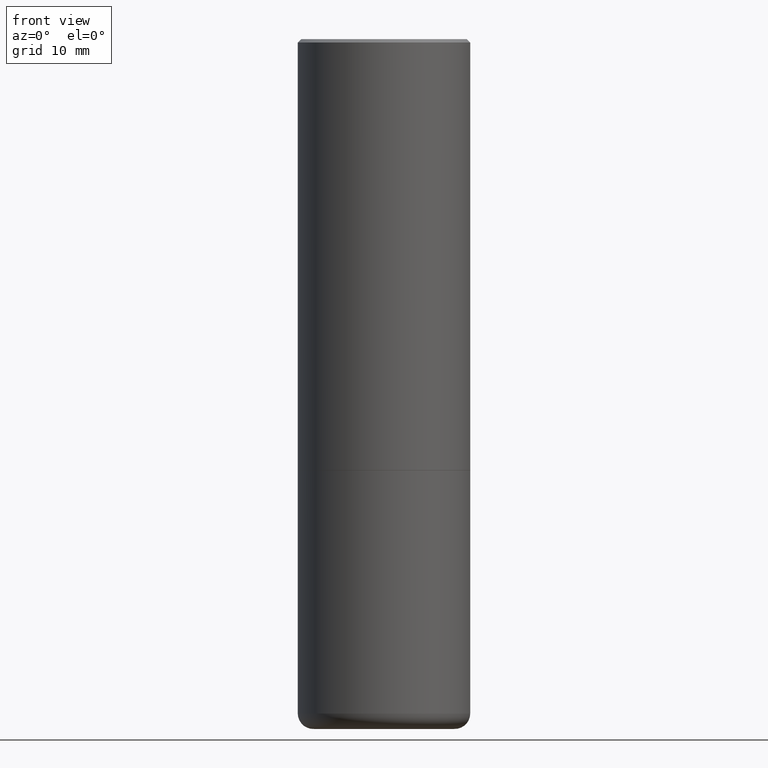
[diagram: clean part render]
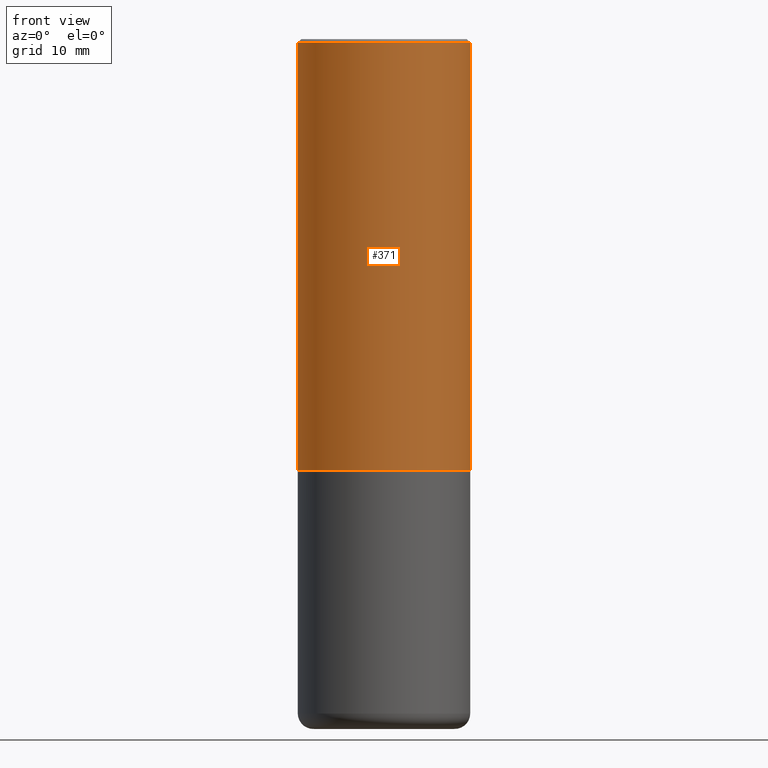
[diagram: same view with one face highlighted and labeled with its STEP entity id]
A machine part, front view. The second image highlights one B-rep face of the part: STEP entity #371.
In plain terms, the highlighted cylindrical surface (partial cylindrical patch) has radius 12.7 mm, axis along (-0, 0, 1).
Its self-contained STEP definition (entity closure, byte-faithful):
#19 = DIRECTION ( 'NONE',  ( 1.000000000000000000, -6.982962677686265133E-15, 0.000000000000000000 ) ) ;
#20 = DIRECTION ( 'NONE',  ( -2.445468806185136597E-29, 3.491481338843145583E-15, 1.000000000000000000 ) ) ;
#24 = CARTESIAN_POINT ( 'NONE',  ( -0.4999999999999998335, 3.552713678800499746E-15, -2.459467545127452330E-29 ) ) ;
#27 = CARTESIAN_POINT ( 'NONE',  ( 4.890937612370278413E-31, -6.982962677686297772E-17, -0.02000000000000002123 ) ) ;
#42 = EDGE_LOOP ( 'NONE', ( #69, #373, #128, #439 ) ) ;
#63 = DIRECTION ( 'NONE',  ( -2.445468806185136877E-29, 3.491481338843145188E-15, 1.000000000000000000 ) ) ;
#69 = ORIENTED_EDGE ( 'NONE', *, *, #293, .F. ) ;
#83 = CARTESIAN_POINT ( 'NONE',  ( 0.4999999999999996669, -3.500078625662626318E-15, -0.02000000000000002123 ) ) ;
#89 = CYLINDRICAL_SURFACE ( 'NONE', #306, 0.4999999999999998335 ) ;
#92 = CARTESIAN_POINT ( 'NONE',  ( 0.4999999999999998335, -3.491481338843132566E-15, 2.438088387897967336E-29 ) ) ;
#104 = VERTEX_POINT ( 'NONE', #256 ) ;
#114 = CARTESIAN_POINT ( 'NONE',  ( -0.5000000000000000000, -8.448070674724403070E-16, -2.499000000000000110 ) ) ;
#117 = VECTOR ( 'NONE', #63, 39.37007874015748143 ) ;
#127 = LINE ( 'NONE', #24, #117 ) ;
#128 = ORIENTED_EDGE ( 'NONE', *, *, #315, .T. ) ;
#130 = DIRECTION ( 'NONE',  ( 1.000000000000000000, -6.982962677686267499E-15, 4.876176775795936353E-29 ) ) ;
#144 = VECTOR ( 'NONE', #374, 39.37007874015748143 ) ;
#151 = CIRCLE ( 'NONE', #420, 0.5000000000000000000 ) ;
#160 = CARTESIAN_POINT ( 'NONE',  ( 0.000000000000000000, 0.000000000000000000, 0.000000000000000000 ) ) ;
#193 = VERTEX_POINT ( 'NONE', #83 ) ;
#194 = EDGE_CURVE ( 'NONE', #236, #104, #151, .T. ) ;
#236 = VERTEX_POINT ( 'NONE', #114 ) ;
#240 = DIRECTION ( 'NONE',  ( 1.000000000000000000, -6.982962677686266711E-15, 0.000000000000000000 ) ) ;
#256 = CARTESIAN_POINT ( 'NONE',  ( 0.5000000000000000000, -1.221669320461215371E-14, -2.499000000000000110 ) ) ;
#266 = DIRECTION ( 'NONE',  ( -2.445468806185136597E-29, 3.491481338843145583E-15, 1.000000000000000000 ) ) ;
#293 = EDGE_CURVE ( 'NONE', #236, #338, #127, .T. ) ;
#306 = AXIS2_PLACEMENT_3D ( 'NONE', #160, #266, #130 ) ;
#307 = DIRECTION ( 'NONE',  ( -2.445468806185136597E-29, 3.491481338843145583E-15, 1.000000000000000000 ) ) ;
#315 = EDGE_CURVE ( 'NONE', #104, #193, #376, .T. ) ;
#334 = EDGE_CURVE ( 'NONE', #338, #193, #408, .T. ) ;
#338 = VERTEX_POINT ( 'NONE', #429 ) ;
#339 = FACE_OUTER_BOUND ( 'NONE', #42, .T. ) ;
#342 = AXIS2_PLACEMENT_3D ( 'NONE', #27, #307, #240 ) ;
#371 = ADVANCED_FACE ( 'NONE', ( #339 ), #89, .T. ) ;
#373 = ORIENTED_EDGE ( 'NONE', *, *, #194, .T. ) ;
#374 = DIRECTION ( 'NONE',  ( -2.445468806185136877E-29, 3.491481338843145188E-15, 1.000000000000000000 ) ) ;
#376 = LINE ( 'NONE', #92, #144 ) ;
#396 = CARTESIAN_POINT ( 'NONE',  ( 6.111226546656657010E-29, -8.725211865769021935E-15, -2.499000000000000110 ) ) ;
#408 = CIRCLE ( 'NONE', #342, 0.4999999999999996669 ) ;
#420 = AXIS2_PLACEMENT_3D ( 'NONE', #396, #20, #19 ) ;
#429 = CARTESIAN_POINT ( 'NONE',  ( -0.4999999999999996669, 3.421651712066268085E-15, -0.02000000000000002123 ) ) ;
#439 = ORIENTED_EDGE ( 'NONE', *, *, #334, .F. ) ;